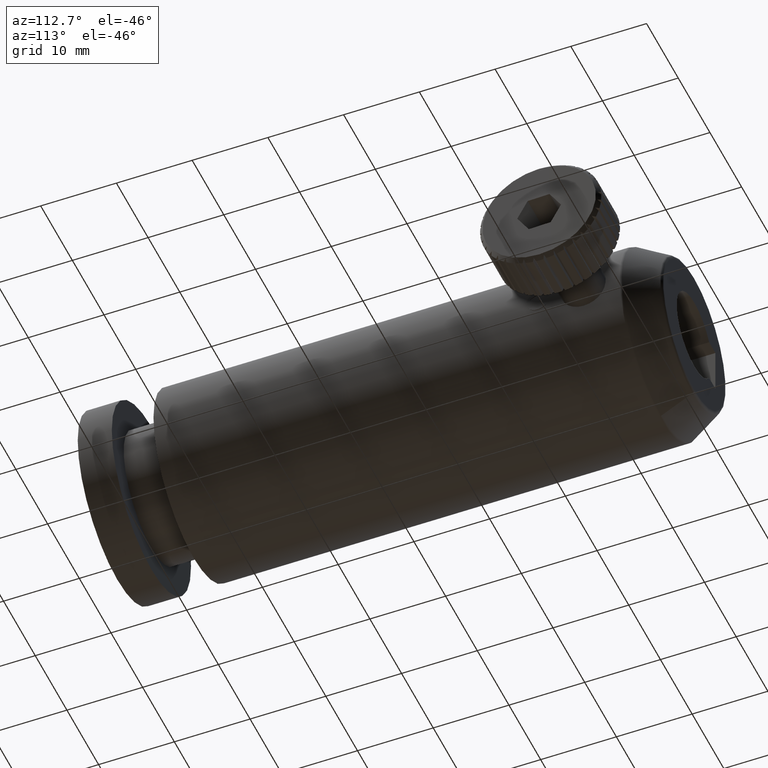
[diagram: clean part render]
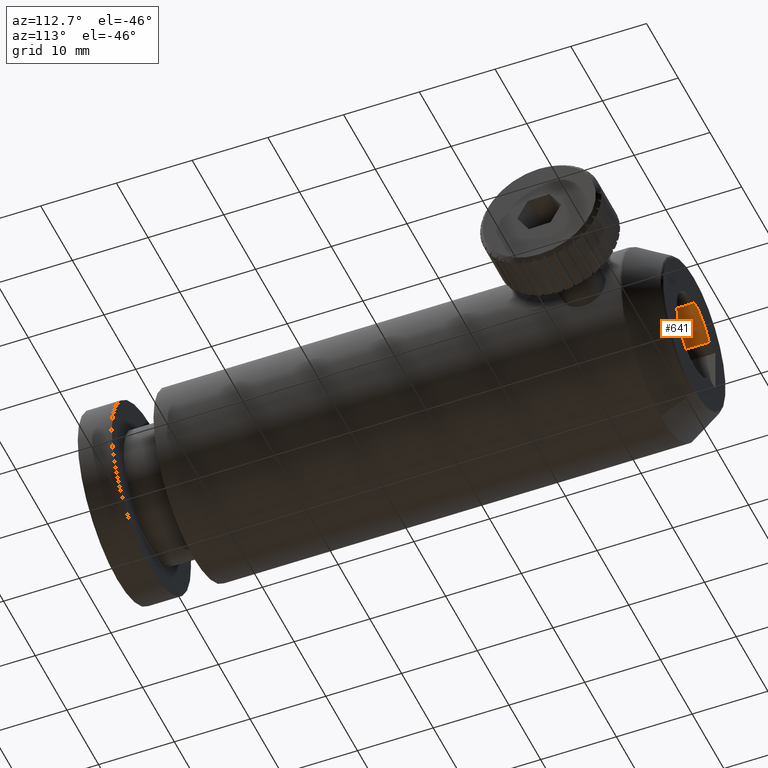
[diagram: same view with one face highlighted and labeled with its STEP entity id]
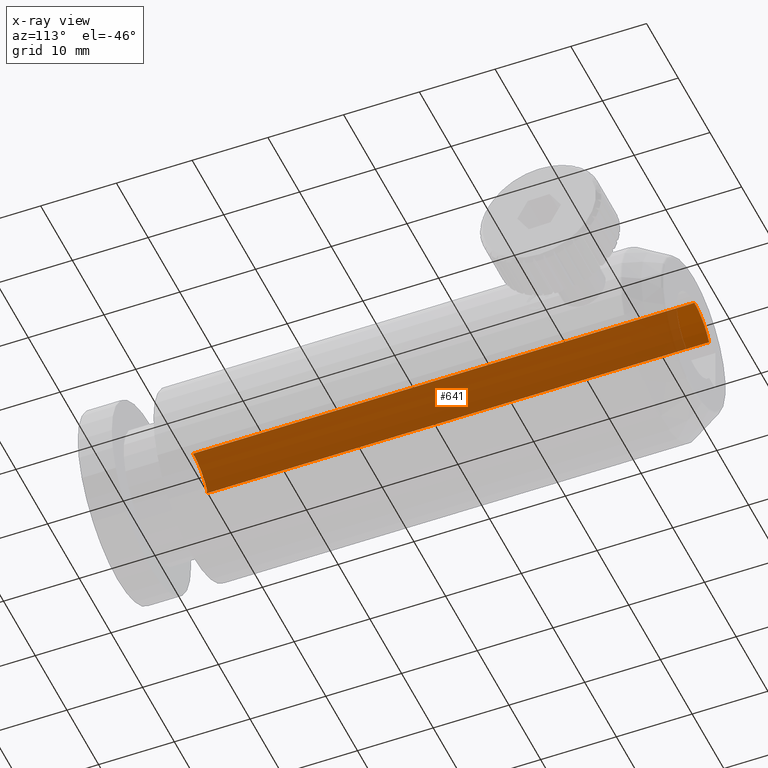
[diagram: x-ray of the same camera — body ghosted, the highlighted face saturated]
A machine part, auxiliary view. The second image highlights one B-rep face of the part: STEP entity #641.
The next image is the same camera in x-ray: the body ghosted, the highlighted face saturated — about 96% of this face is hidden behind the body in this view.
In plain terms, the highlighted cylindrical surface (partial cylindrical patch) has radius 5.5967 mm, axis along (-0, -1, -0).
Its self-contained STEP definition (entity closure, byte-faithful):
#71 = EDGE_CURVE ( 'NONE', #1157, #2457, #1246, .T. ) ;
#131 = VERTEX_POINT ( 'NONE', #3881 ) ;
#198 = LINE ( 'NONE', #4817, #3101 ) ;
#332 = EDGE_CURVE ( 'NONE', #4589, #1157, #3343, .T. ) ;
#638 = AXIS2_PLACEMENT_3D ( 'NONE', #928, #3764, #3385 ) ;
#641 = ADVANCED_FACE ( 'NONE', ( #1420 ), #2895, .F. ) ;
#642 = DIRECTION ( 'NONE',  ( 0.0000000000000000000, 0.0000000000000000000, -1.000000000000000000 ) ) ;
#776 = DIRECTION ( 'NONE',  ( 0.0000000000000000000, 0.0000000000000000000, -1.000000000000000000 ) ) ;
#867 = ORIENTED_EDGE ( 'NONE', *, *, #71, .T. ) ;
#928 = CARTESIAN_POINT ( 'NONE',  ( -3.194185020997174700, -6.313612059609844200, 0.0000000000000000000 ) ) ;
#935 = CARTESIAN_POINT ( 'NONE',  ( -3.194185020997173800, -6.313612059609844200, 5.596650784174404000 ) ) ;
#1157 = VERTEX_POINT ( 'NONE', #3679 ) ;
#1246 = LINE ( 'NONE', #2755, #2208 ) ;
#1407 = ORIENTED_EDGE ( 'NONE', *, *, #332, .T. ) ;
#1420 = FACE_OUTER_BOUND ( 'NONE', #3825, .T. ) ;
#1440 = EDGE_CURVE ( 'NONE', #131, #2457, #4901, .T. ) ;
#1813 = AXIS2_PLACEMENT_3D ( 'NONE', #4232, #3936, #642 ) ;
#2208 = VECTOR ( 'NONE', #3171, 1000.000000000000000 ) ;
#2457 = VERTEX_POINT ( 'NONE', #4765 ) ;
#2755 = CARTESIAN_POINT ( 'NONE',  ( -7.833753966491998200, -24.86122148995913500, 3.130000000000003400 ) ) ;
#2895 = CYLINDRICAL_SURFACE ( 'NONE', #1813, 5.596650784174404000 ) ;
#3059 = EDGE_CURVE ( 'NONE', #131, #4589, #198, .T. ) ;
#3101 = VECTOR ( 'NONE', #4059, 1000.000000000000000 ) ;
#3171 = DIRECTION ( 'NONE',  ( 0.0000000000000000000, 1.000000000000000000, 0.0000000000000000000 ) ) ;
#3306 = AXIS2_PLACEMENT_3D ( 'NONE', #3590, #4840, #776 ) ;
#3343 = CIRCLE ( 'NONE', #638, 5.596650784174404000 ) ;
#3385 = DIRECTION ( 'NONE',  ( 0.0000000000000000000, 0.0000000000000000000, -1.000000000000000000 ) ) ;
#3575 = ORIENTED_EDGE ( 'NONE', *, *, #3059, .T. ) ;
#3590 = CARTESIAN_POINT ( 'NONE',  ( -3.194185020997174700, 59.88638794039016500, 0.0000000000000000000 ) ) ;
#3679 = CARTESIAN_POINT ( 'NONE',  ( -7.833753966491998200, -6.313612059609846000, 3.130000000000003400 ) ) ;
#3749 = ORIENTED_EDGE ( 'NONE', *, *, #1440, .F. ) ;
#3764 = DIRECTION ( 'NONE',  ( -0.0000000000000000000, -1.000000000000000000, -0.0000000000000000000 ) ) ;
#3825 = EDGE_LOOP ( 'NONE', ( #3749, #3575, #1407, #867 ) ) ;
#3881 = CARTESIAN_POINT ( 'NONE',  ( -3.194185020997173800, 59.88638794039016500, 5.596650784174404000 ) ) ;
#3936 = DIRECTION ( 'NONE',  ( -0.0000000000000000000, -1.000000000000000000, -0.0000000000000000000 ) ) ;
#4059 = DIRECTION ( 'NONE',  ( -0.0000000000000000000, -1.000000000000000000, -0.0000000000000000000 ) ) ;
#4232 = CARTESIAN_POINT ( 'NONE',  ( -3.194185020997174700, -24.86122148995913500, 0.0000000000000000000 ) ) ;
#4589 = VERTEX_POINT ( 'NONE', #935 ) ;
#4765 = CARTESIAN_POINT ( 'NONE',  ( -7.833753966491998200, 59.88638794039016500, 3.130000000000003400 ) ) ;
#4817 = CARTESIAN_POINT ( 'NONE',  ( -3.194185020997173800, -24.86122148995913500, 5.596650784174404000 ) ) ;
#4840 = DIRECTION ( 'NONE',  ( -0.0000000000000000000, -1.000000000000000000, -0.0000000000000000000 ) ) ;
#4901 = CIRCLE ( 'NONE', #3306, 5.596650784174404000 ) ;